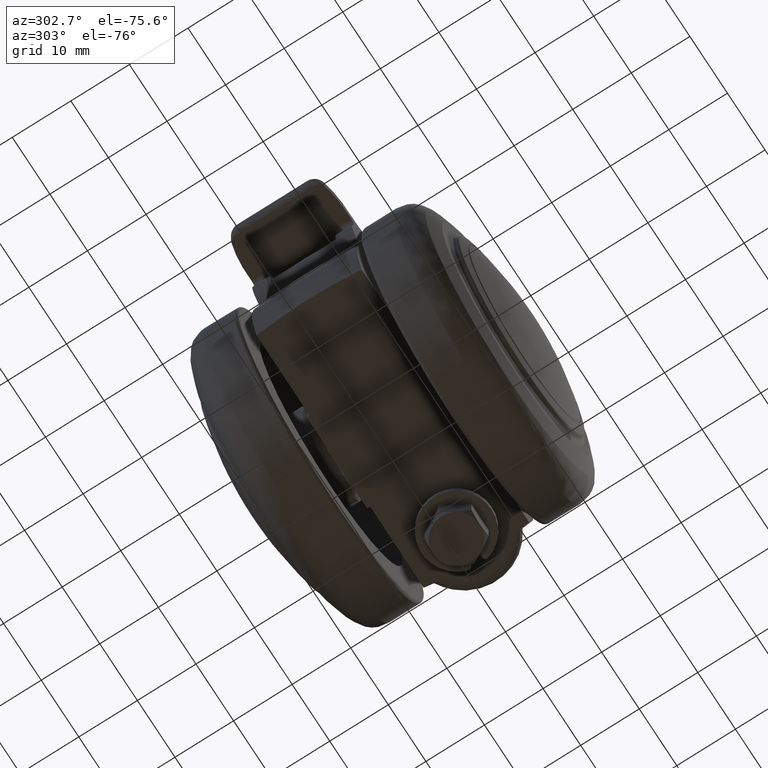
[diagram: clean part render]
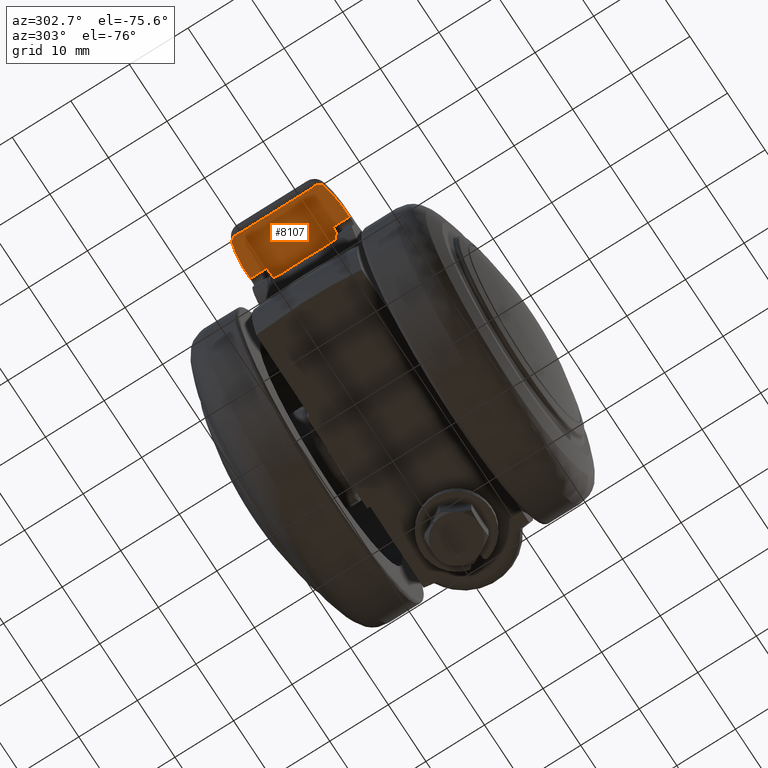
[diagram: same view with one face highlighted and labeled with its STEP entity id]
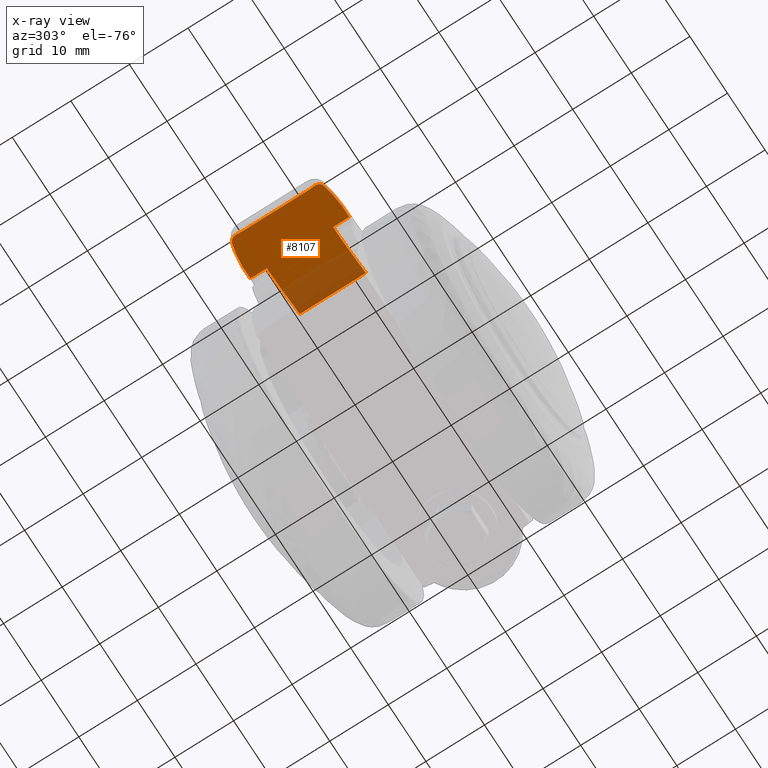
[diagram: x-ray of the same camera — body ghosted, the highlighted face saturated]
A machine part, auxiliary view. The second image highlights one B-rep face of the part: STEP entity #8107.
The next image is the same camera in x-ray: the body ghosted, the highlighted face saturated — about 25% of this face is hidden behind the body in this view.
In plain terms, the highlighted face is a freeform B-spline surface patch.
Its self-contained STEP definition (entity closure, byte-faithful):
#4476=CARTESIAN_POINT('',(-24.671590711935899,-8.449999999999999,16.163274111028400));
#4477=VERTEX_POINT('',#4476);
#4537=CARTESIAN_POINT('',(-26.689284939177050,-8.449999999999999,16.047655013801101));
#4538=VERTEX_POINT('',#4537);
#4552=CARTESIAN_POINT('',(-24.671590711935860,-8.450000000000069,16.163274111028390));
#4553=CARTESIAN_POINT('',(-25.342472134784479,-8.450000000000069,16.100473449606390));
#4554=CARTESIAN_POINT('',(-26.015621165997040,-8.450000000000069,16.061900269271419));
#4555=CARTESIAN_POINT('',(-26.689284939177050,-8.449999999999999,16.047655013801101));
#4556=QUASI_UNIFORM_CURVE('',3,(#4552,#4553,#4554,#4555),.UNSPECIFIED.,.F.,.U.);
#4557=EDGE_CURVE('',#4477,#4538,#4556,.T.);
#4743=CARTESIAN_POINT('',(-28.798952590500900,-8.224591691030071,16.082560374396099));
#4744=VERTEX_POINT('',#4743);
#4758=CARTESIAN_POINT('',(-26.689284939177050,-8.449999999999999,16.047655013801101));
#4759=CARTESIAN_POINT('',(-26.831172272626709,-8.448264187379083,16.045279505247048));
#4760=CARTESIAN_POINT('',(-27.114618943786219,-8.444796574751431,16.040533979514851));
#4761=CARTESIAN_POINT('',(-27.538882927828642,-8.416788478128026,16.041574145504448));
#4762=CARTESIAN_POINT('',(-27.961246752093331,-8.371669540427092,16.048649715152258));
#4763=CARTESIAN_POINT('',(-28.381996513011838,-8.309396467824595,16.061724095100800));
#4764=CARTESIAN_POINT('',(-28.659822587205650,-8.252889369159448,16.075607719755670));
#4765=CARTESIAN_POINT('',(-28.798952590500850,-8.224591691030071,16.082560374396110));
#4766=B_SPLINE_CURVE_WITH_KNOTS('',3,(#4758,#4759,#4760,#4761,#4762,#4763,#4764,#4765),.UNSPECIFIED.,.F.,.U.,(4,1,1,1,1,4),(0.0,0.200199734417117,0.399936674457590,0.599573672825758,0.799474126462387,1.0),.UNSPECIFIED.);
#4767=EDGE_CURVE('',#4538,#4744,#4766,.T.);
#4924=CARTESIAN_POINT('',(-30.418316069664151,-7.874538073215370,16.217688629996751));
#4925=VERTEX_POINT('',#4924);
#4939=CARTESIAN_POINT('',(-28.798952590500850,-8.224591691030071,16.082560374396110));
#4940=CARTESIAN_POINT('',(-29.339896081351739,-8.107907151758390,16.111924875457120));
#4941=CARTESIAN_POINT('',(-29.879987020582629,-7.991222612486712,16.156992920663189));
#4942=CARTESIAN_POINT('',(-30.418316069664151,-7.874538073215370,16.217688629996751));
#4943=QUASI_UNIFORM_CURVE('',3,(#4939,#4940,#4941,#4942),.UNSPECIFIED.,.F.,.U.);
#4944=EDGE_CURVE('',#4744,#4925,#4943,.T.);
#5077=CARTESIAN_POINT('',(-31.137731888888901,-5.968713570953300,16.308249638080351));
#5078=VERTEX_POINT('',#5077);
#5092=CARTESIAN_POINT('',(-30.418316069664151,-7.874538073215370,16.217688629996751));
#5093=CARTESIAN_POINT('',(-30.459901320406789,-7.863693200453739,16.222433211681739));
#5094=CARTESIAN_POINT('',(-30.542610830634199,-7.842123675236337,16.231869779224098));
#5095=CARTESIAN_POINT('',(-30.658875054867831,-7.786147423545392,16.245796796745559));
#5096=CARTESIAN_POINT('',(-30.766858676221322,-7.713313815815840,16.259133215436410));
#5097=CARTESIAN_POINT('',(-30.866156722628869,-7.622121040426927,16.271784761260790));
#5098=CARTESIAN_POINT('',(-30.991664528176909,-7.471282877064181,16.288207051731838));
#5099=CARTESIAN_POINT('',(-31.119970965690630,-7.243078994124359,16.305699426686569));
#5100=CARTESIAN_POINT('',(-31.198262872357841,-6.954369530549515,16.316728091221918));
#5101=CARTESIAN_POINT('',(-31.216495949178789,-6.666335236070214,16.319317200007649));
#5102=CARTESIAN_POINT('',(-31.190777355408461,-6.388061848220870,16.315667888261000));
#5103=CARTESIAN_POINT('',(-31.154804758713730,-6.153017369039679,16.310624890616339));
#5104=CARTESIAN_POINT('',(-31.141696691684960,-6.011514120683256,16.308801238835979));
#5105=CARTESIAN_POINT('',(-31.137731888888901,-5.968713570953300,16.308249638080351));
#5106=B_SPLINE_CURVE_WITH_KNOTS('',3,(#5092,#5093,#5094,#5095,#5096,#5097,#5098,#5099,#5100,#5101,#5102,#5103,#5104,#5105),.UNSPECIFIED.,.F.,.U.,(4,1,1,1,1,1,1,1,1,1,1,4),(0.0,0.057159890406909,0.113686137651687,0.170900354305393,0.230078078002300,0.292374352695520,0.431202510674228,0.573738423593373,0.684974886767326,0.811787764458204,0.943071362384243,1.0),.UNSPECIFIED.);
#5107=EDGE_CURVE('',#4925,#5078,#5106,.T.);
#5279=CARTESIAN_POINT('',(-31.137731888888901,5.968713570953300,16.308249638080351));
#5280=VERTEX_POINT('',#5279);
#5294=CARTESIAN_POINT('',(-31.137731888888901,-5.968713570953300,16.308249638080351));
#5295=CARTESIAN_POINT('',(-31.137731888888929,-1.989571190317767,16.308249638080358));
#5296=CARTESIAN_POINT('',(-31.137731888888929,1.989571190317545,16.308249638080358));
#5297=CARTESIAN_POINT('',(-31.137731888888901,5.968713570953300,16.308249638080351));
#5298=QUASI_UNIFORM_CURVE('',3,(#5294,#5295,#5296,#5297),.UNSPECIFIED.,.F.,.U.);
#5299=EDGE_CURVE('',#5078,#5280,#5298,.T.);
#5423=CARTESIAN_POINT('',(-30.418316069664151,7.874538073215370,16.217688629996751));
#5424=VERTEX_POINT('',#5423);
#5438=CARTESIAN_POINT('',(-31.137731888888901,5.968713570953300,16.308249638080351));
#5439=CARTESIAN_POINT('',(-31.141675112864039,6.011512622638612,16.308798236623861));
#5440=CARTESIAN_POINT('',(-31.154717408920710,6.153071384340912,16.310612737820289));
#5441=CARTESIAN_POINT('',(-31.190488050266659,6.388248056635981,16.315627164594218));
#5442=CARTESIAN_POINT('',(-31.216026706851672,6.666635879075099,16.319250754869980));
#5443=CARTESIAN_POINT('',(-31.198001475554989,6.954555596694551,16.316690676416201));
#5444=CARTESIAN_POINT('',(-31.119659405200562,7.243195120798621,16.305658847779501));
#5445=CARTESIAN_POINT('',(-30.976704110871331,7.497651234852579,16.286160410426461));
#5446=CARTESIAN_POINT('',(-30.806686381313380,7.686520946295285,16.264076802872658));
#5447=CARTESIAN_POINT('',(-30.624333235402538,7.814403828785954,16.241386161544760));
#5448=CARTESIAN_POINT('',(-30.486808164291581,7.854545950980755,16.225567068511360));
#5449=CARTESIAN_POINT('',(-30.418316069664151,7.874538073215370,16.217688629996751));
#5450=B_SPLINE_CURVE_WITH_KNOTS('',3,(#5438,#5439,#5440,#5441,#5442,#5443,#5444,#5445,#5446,#5447,#5448,#5449),.UNSPECIFIED.,.F.,.U.,(4,1,1,1,1,1,1,1,1,4),(0.0,0.056957751985701,0.188388960102260,0.315339841960460,0.426658274778169,0.569030728167935,0.708090295231927,0.810041277448695,0.905394189618024,1.0),.UNSPECIFIED.);
#5451=EDGE_CURVE('',#5280,#5424,#5450,.T.);
#5665=CARTESIAN_POINT('',(-28.798952590500949,8.224591691029961,16.082560374396099));
#5666=VERTEX_POINT('',#5665);
#5680=CARTESIAN_POINT('',(-30.418316069664151,7.874538073215370,16.217688629996751));
#5681=CARTESIAN_POINT('',(-29.879987020582679,7.991222612486601,16.156992920663189));
#5682=CARTESIAN_POINT('',(-29.339896081351831,8.107907151758280,16.111924875457131));
#5683=CARTESIAN_POINT('',(-28.798952590500999,8.224591691029959,16.082560374396120));
#5684=QUASI_UNIFORM_CURVE('',3,(#5680,#5681,#5682,#5683),.UNSPECIFIED.,.F.,.U.);
#5685=EDGE_CURVE('',#5424,#5666,#5684,.T.);
#5808=CARTESIAN_POINT('',(-26.689284939177050,8.449999999999999,16.047655013801101));
#5809=VERTEX_POINT('',#5808);
#5823=CARTESIAN_POINT('',(-28.798952590500999,8.224591691029959,16.082560374396120));
#5824=CARTESIAN_POINT('',(-28.659822587403699,8.252889369162507,16.075607719764729));
#5825=CARTESIAN_POINT('',(-28.381996513511599,8.309396467853006,16.061724095123271));
#5826=CARTESIAN_POINT('',(-27.961246752884751,8.371669540444149,16.048649715172129));
#5827=CARTESIAN_POINT('',(-27.538882928618730,8.416788478141417,16.041574145511049));
#5828=CARTESIAN_POINT('',(-27.114618944279201,8.444796574756296,16.040533979509082));
#5829=CARTESIAN_POINT('',(-26.831172272823981,8.448264187380236,16.045279505244579));
#5830=CARTESIAN_POINT('',(-26.689284939176961,8.449999999999957,16.047655013801108));
#5831=B_SPLINE_CURVE_WITH_KNOTS('',3,(#5823,#5824,#5825,#5826,#5827,#5828,#5829,#5830),.UNSPECIFIED.,.F.,.U.,(4,1,1,1,1,4),(0.0,0.200525873263101,0.400426326760832,0.600063325127742,0.799800265305858,1.0),.UNSPECIFIED.);
#5832=EDGE_CURVE('',#5666,#5809,#5831,.T.);
#5969=CARTESIAN_POINT('',(-24.671590711935899,8.449999999999999,16.163274111028400));
#5970=VERTEX_POINT('',#5969);
#5984=CARTESIAN_POINT('',(-26.689284939176961,8.449999999999957,16.047655013801108));
#5985=CARTESIAN_POINT('',(-26.015621165997040,8.449999999999957,16.061900269271419));
#5986=CARTESIAN_POINT('',(-25.342472134784479,8.449999999999957,16.100473449606390));
#5987=CARTESIAN_POINT('',(-24.671590711935860,8.449999999999957,16.163274111028390));
#5988=QUASI_UNIFORM_CURVE('',3,(#5984,#5985,#5986,#5987),.UNSPECIFIED.,.F.,.U.);
#5989=EDGE_CURVE('',#5809,#5970,#5988,.T.);
#6213=CARTESIAN_POINT('',(-24.671590711935899,5.650000000000000,16.163274111028400));
#6214=VERTEX_POINT('',#6213);
#6215=CARTESIAN_POINT('',(-24.671590711935899,8.449999999999999,16.163274111028400));
#6216=CARTESIAN_POINT('',(-24.671590711935899,5.650000000000000,16.163274111028400));
#6217=QUASI_UNIFORM_CURVE('',1,(#6215,#6216),.UNSPECIFIED.,.F.,.U.);
#6218=EDGE_CURVE('',#5970,#6214,#6217,.T.);
#6268=CARTESIAN_POINT('',(-15.894105054896849,5.650000000000000,18.461459929782752));
#6269=VERTEX_POINT('',#6268);
#6360=CARTESIAN_POINT('',(-24.671590711935899,-5.650000000000000,16.163274111028400));
#6361=VERTEX_POINT('',#6360);
#6362=CARTESIAN_POINT('',(-24.671590711935899,-8.449999999999999,16.163274111028400));
#6363=CARTESIAN_POINT('',(-24.671590711935899,-5.650000000000000,16.163274111028400));
#6364=QUASI_UNIFORM_CURVE('',1,(#6362,#6363),.UNSPECIFIED.,.F.,.U.);
#6365=EDGE_CURVE('',#4477,#6361,#6364,.T.);
#6399=CARTESIAN_POINT('',(-15.894105054896899,-5.650000000000000,18.461459929782698));
#6400=VERTEX_POINT('',#6399);
#7984=CARTESIAN_POINT('',(-15.894105054896899,-5.650000000000000,18.461459929782698));
#7985=CARTESIAN_POINT('',(-15.894105054896849,5.650000000000000,18.461459929782752));
#7986=QUASI_UNIFORM_CURVE('',1,(#7984,#7985),.UNSPECIFIED.,.F.,.U.);
#7987=EDGE_CURVE('',#6400,#6269,#7986,.T.);
#8053=CARTESIAN_POINT('',(-31.970467562031271,-8.872500000000070,16.436847818877133));
#8054=CARTESIAN_POINT('',(-31.970467562031271,8.883062500000007,16.436847818877133));
#8055=CARTESIAN_POINT('',(-23.209385753175749,-8.872500000000068,14.948588953180101));
#8056=CARTESIAN_POINT('',(-23.209385753175749,8.883062500000005,14.948588953180101));
#8057=CARTESIAN_POINT('',(-15.193543488575713,-8.872500000000070,18.784959855717617));
#8058=CARTESIAN_POINT('',(-15.193543488575713,8.883062500000007,18.784959855717617));
#8066=(BOUNDED_SURFACE()B_SPLINE_SURFACE(1,2,((#8053,#8055,#8057),(#8054,#8056,#8058)),.UNSPECIFIED.,.F.,.F.,.U.)B_SPLINE_SURFACE_WITH_KNOTS((2,2),(3,3),(0.0,17.755562500000082),(0.0,17.346821077884620),.UNSPECIFIED.)GEOMETRIC_REPRESENTATION_ITEM()RATIONAL_B_SPLINE_SURFACE(((0.998568167551254,0.950803828476386,0.996516515948938),(0.998568167551254,0.950803828476386,0.996516515948938)))REPRESENTATION_ITEM('')SURFACE());
#8067=ORIENTED_EDGE('',*,*,#6365,.F.);
#8068=ORIENTED_EDGE('',*,*,#4557,.T.);
#8069=ORIENTED_EDGE('',*,*,#4767,.T.);
#8070=ORIENTED_EDGE('',*,*,#4944,.T.);
#8071=ORIENTED_EDGE('',*,*,#5107,.T.);
#8072=ORIENTED_EDGE('',*,*,#5299,.T.);
#8073=ORIENTED_EDGE('',*,*,#5451,.T.);
#8074=ORIENTED_EDGE('',*,*,#5685,.T.);
#8075=ORIENTED_EDGE('',*,*,#5832,.T.);
#8076=ORIENTED_EDGE('',*,*,#5989,.T.);
#8077=ORIENTED_EDGE('',*,*,#6218,.T.);
#8078=CARTESIAN_POINT('',(-24.671590711935899,5.650000000000000,16.163274111028390));
#8079=CARTESIAN_POINT('',(-20.094173873578317,5.650000000000000,16.591762358373838));
#8080=CARTESIAN_POINT('',(-15.894105054896849,5.650000000000000,18.461459929782752));
#8088=(BOUNDED_CURVE()B_SPLINE_CURVE(2,(#8078,#8079,#8080),.UNSPECIFIED.,.F.,.U.)CURVE()GEOMETRIC_REPRESENTATION_ITEM()QUASI_UNIFORM_CURVE()RATIONAL_B_SPLINE_CURVE((1.0,0.986786762492811,1.0))REPRESENTATION_ITEM(''));
#8089=EDGE_CURVE('',#6214,#6269,#8088,.T.);
#8090=ORIENTED_EDGE('',*,*,#8089,.T.);
#8091=ORIENTED_EDGE('',*,*,#7987,.F.);
#8092=CARTESIAN_POINT('',(-24.671590711935899,-5.650000000000000,16.163274111028390));
#8093=CARTESIAN_POINT('',(-20.094173873578363,-5.650000000000000,16.591762358373838));
#8094=CARTESIAN_POINT('',(-15.894105054896910,-5.650000000000000,18.461459929782720));
#8102=(BOUNDED_CURVE()B_SPLINE_CURVE(2,(#8092,#8093,#8094),.UNSPECIFIED.,.F.,.U.)CURVE()GEOMETRIC_REPRESENTATION_ITEM()QUASI_UNIFORM_CURVE()RATIONAL_B_SPLINE_CURVE((1.0,0.986786762492811,1.0))REPRESENTATION_ITEM(''));
#8103=EDGE_CURVE('',#6361,#6400,#8102,.T.);
#8104=ORIENTED_EDGE('',*,*,#8103,.F.);
#8105=EDGE_LOOP('',(#8067,#8068,#8069,#8070,#8071,#8072,#8073,#8074,#8075,#8076,#8077,#8090,#8091,#8104));
#8106=FACE_OUTER_BOUND('',#8105,.T.);
#8107=ADVANCED_FACE('',(#8106),#8066,.T.);